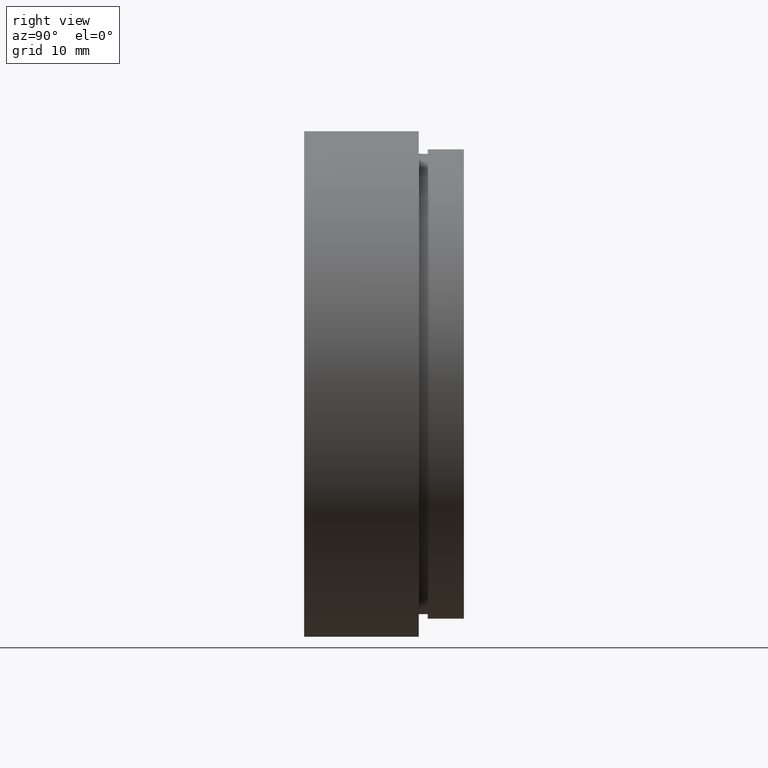
[diagram: clean part render]
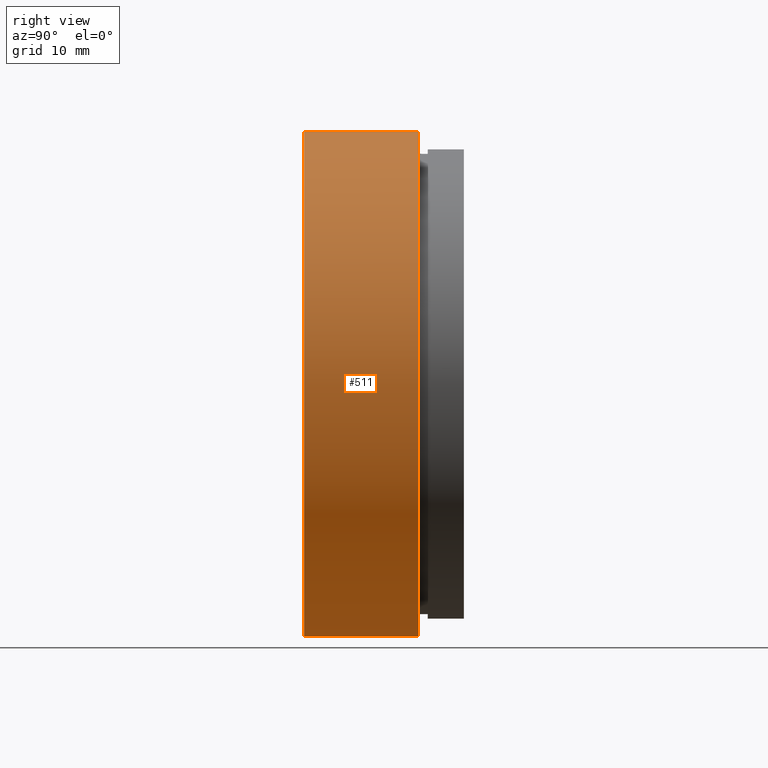
[diagram: same view with one face highlighted and labeled with its STEP entity id]
A machine part, right view. The second image highlights one B-rep face of the part: STEP entity #511.
In plain terms, the highlighted cylindrical surface (partial cylindrical patch) has radius 28 mm, axis along (-0, 1, -0).
Its self-contained STEP definition (entity closure, byte-faithful):
#13 = CIRCLE ( 'NONE', #509, 28.00000000000001800 ) ;
#21 = CARTESIAN_POINT ( 'NONE',  ( 0.0000000000000000000, -2.775557561562891400E-014, 28.00000000000001800 ) ) ;
#28 = VERTEX_POINT ( 'NONE', #428 ) ;
#51 = DIRECTION ( 'NONE',  ( 0.0000000000000000000, 0.0000000000000000000, 1.000000000000000000 ) ) ;
#56 = EDGE_CURVE ( 'NONE', #101, #67, #604, .T. ) ;
#59 = ORIENTED_EDGE ( 'NONE', *, *, #56, .F. ) ;
#67 = VERTEX_POINT ( 'NONE', #539 ) ;
#77 = ORIENTED_EDGE ( 'NONE', *, *, #295, .T. ) ;
#101 = VERTEX_POINT ( 'NONE', #21 ) ;
#178 = CARTESIAN_POINT ( 'NONE',  ( 0.0000000000000000000, 161.3761669434274500, 0.0000000000000000000 ) ) ;
#179 = CARTESIAN_POINT ( 'NONE',  ( 3.429011037612590900E-015, 161.3761669434274500, -28.00000000000001800 ) ) ;
#184 = DIRECTION ( 'NONE',  ( 0.0000000000000000000, 0.0000000000000000000, 1.000000000000000000 ) ) ;
#208 = AXIS2_PLACEMENT_3D ( 'NONE', #340, #289, #51 ) ;
#217 = FACE_OUTER_BOUND ( 'NONE', #457, .T. ) ;
#235 = LINE ( 'NONE', #179, #303 ) ;
#253 = EDGE_CURVE ( 'NONE', #101, #28, #13, .T. ) ;
#289 = DIRECTION ( 'NONE',  ( -0.0000000000000000000, 1.000000000000000000, -0.0000000000000000000 ) ) ;
#295 = EDGE_CURVE ( 'NONE', #28, #578, #235, .T. ) ;
#303 = VECTOR ( 'NONE', #406, 1000.000000000000000 ) ;
#310 = CYLINDRICAL_SURFACE ( 'NONE', #432, 28.00000000000001800 ) ;
#318 = CARTESIAN_POINT ( 'NONE',  ( 0.0000000000000000000, -2.775557561562891400E-014, 0.0000000000000000000 ) ) ;
#340 = CARTESIAN_POINT ( 'NONE',  ( 0.0000000000000000000, 12.69999999999998900, 0.0000000000000000000 ) ) ;
#395 = ORIENTED_EDGE ( 'NONE', *, *, #253, .T. ) ;
#406 = DIRECTION ( 'NONE',  ( -0.0000000000000000000, 1.000000000000000000, -0.0000000000000000000 ) ) ;
#422 = CARTESIAN_POINT ( 'NONE',  ( 3.429011037612590900E-015, 12.69999999999998900, -28.00000000000001800 ) ) ;
#428 = CARTESIAN_POINT ( 'NONE',  ( 3.429011037612590900E-015, -2.775557561562891400E-014, -28.00000000000001800 ) ) ;
#432 = AXIS2_PLACEMENT_3D ( 'NONE', #178, #516, #184 ) ;
#447 = ORIENTED_EDGE ( 'NONE', *, *, #620, .F. ) ;
#457 = EDGE_LOOP ( 'NONE', ( #395, #77, #447, #59 ) ) ;
#484 = CIRCLE ( 'NONE', #208, 28.00000000000001800 ) ;
#488 = DIRECTION ( 'NONE',  ( -0.0000000000000000000, 1.000000000000000000, -0.0000000000000000000 ) ) ;
#509 = AXIS2_PLACEMENT_3D ( 'NONE', #318, #613, #567 ) ;
#511 = ADVANCED_FACE ( 'NONE', ( #217 ), #310, .T. ) ;
#516 = DIRECTION ( 'NONE',  ( -0.0000000000000000000, 1.000000000000000000, -0.0000000000000000000 ) ) ;
#539 = CARTESIAN_POINT ( 'NONE',  ( 0.0000000000000000000, 12.69999999999998900, 28.00000000000001800 ) ) ;
#567 = DIRECTION ( 'NONE',  ( 0.0000000000000000000, 0.0000000000000000000, 1.000000000000000000 ) ) ;
#578 = VERTEX_POINT ( 'NONE', #422 ) ;
#583 = CARTESIAN_POINT ( 'NONE',  ( 0.0000000000000000000, 161.3761669434274500, 28.00000000000001800 ) ) ;
#596 = VECTOR ( 'NONE', #488, 1000.000000000000000 ) ;
#604 = LINE ( 'NONE', #583, #596 ) ;
#613 = DIRECTION ( 'NONE',  ( -0.0000000000000000000, 1.000000000000000000, -0.0000000000000000000 ) ) ;
#620 = EDGE_CURVE ( 'NONE', #67, #578, #484, .T. ) ;